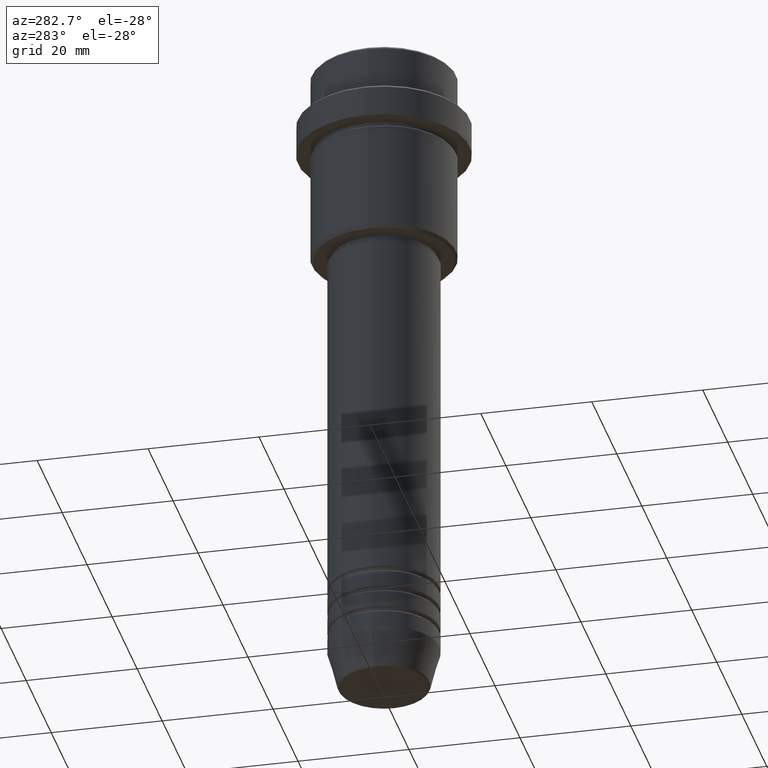
[diagram: clean part render]
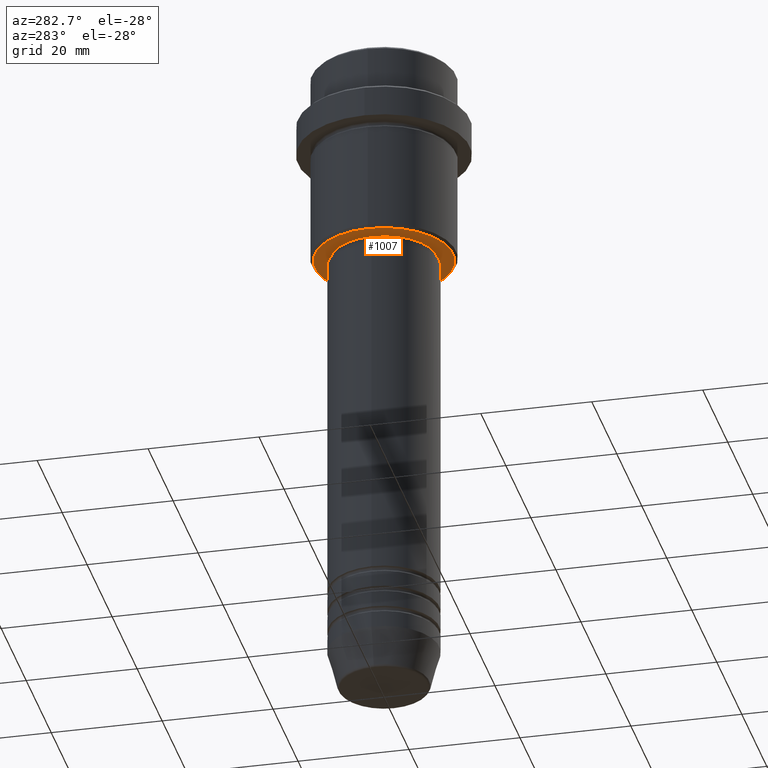
[diagram: same view with one face highlighted and labeled with its STEP entity id]
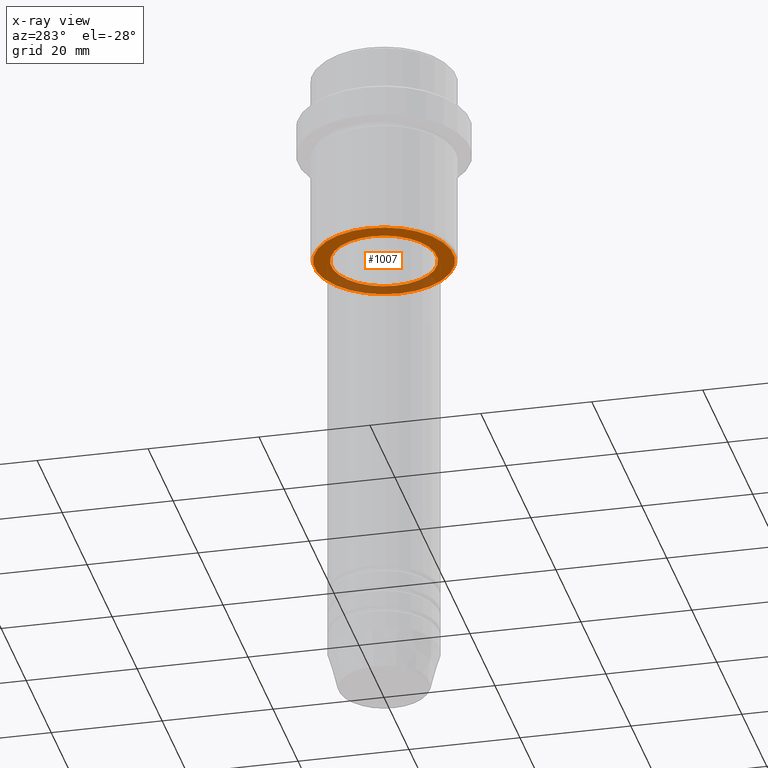
[diagram: x-ray of the same camera — body ghosted, the highlighted face saturated]
A machine part, auxiliary view. The second image highlights one B-rep face of the part: STEP entity #1007.
The next image is the same camera in x-ray: the body ghosted, the highlighted face saturated — about 29% of this face is hidden behind the body in this view.
In plain terms, the highlighted planar face has unit normal (0, 0, -1).
Its self-contained STEP definition (entity closure, byte-faithful):
#22 = CIRCLE ( 'NONE', #1201, 9.499999999999996447 ) ;
#30 = ORIENTED_EDGE ( 'NONE', *, *, #798, .T. ) ;
#31 = VERTEX_POINT ( 'NONE', #636 ) ;
#66 = EDGE_CURVE ( 'NONE', #942, #1308, #253, .T. ) ;
#73 = AXIS2_PLACEMENT_3D ( 'NONE', #1366, #1156, #376 ) ;
#106 = ORIENTED_EDGE ( 'NONE', *, *, #66, .T. ) ;
#140 = EDGE_LOOP ( 'NONE', ( #106, #30 ) ) ;
#147 = CIRCLE ( 'NONE', #750, 12.49999999999998401 ) ;
#195 = DIRECTION ( 'NONE',  ( 0.000000000000000000, 0.000000000000000000, -1.000000000000000000 ) ) ;
#210 = PLANE ( 'NONE',  #747 ) ;
#253 = CIRCLE ( 'NONE', #73, 9.499999999999996447 ) ;
#263 = CARTESIAN_POINT ( 'NONE',  ( 0.000000000000000000, 0.000000000000000000, -36.00000000000000711 ) ) ;
#265 = CARTESIAN_POINT ( 'NONE',  ( -9.499999999999996447, 1.163414459189985091E-15, -36.00000000000000711 ) ) ;
#271 = CIRCLE ( 'NONE', #545, 12.49999999999998401 ) ;
#334 = VERTEX_POINT ( 'NONE', #590 ) ;
#357 = DIRECTION ( 'NONE',  ( 0.000000000000000000, 0.000000000000000000, -1.000000000000000000 ) ) ;
#363 = EDGE_LOOP ( 'NONE', ( #1019, #512 ) ) ;
#376 = DIRECTION ( 'NONE',  ( 1.000000000000000000, 0.000000000000000000, 0.000000000000000000 ) ) ;
#512 = ORIENTED_EDGE ( 'NONE', *, *, #640, .T. ) ;
#545 = AXIS2_PLACEMENT_3D ( 'NONE', #1253, #357, #1040 ) ;
#590 = CARTESIAN_POINT ( 'NONE',  ( 12.49999999999998401, 0.000000000000000000, -36.00000000000000711 ) ) ;
#636 = CARTESIAN_POINT ( 'NONE',  ( -12.49999999999998401, 1.561424668912874125E-15, -36.00000000000000711 ) ) ;
#640 = EDGE_CURVE ( 'NONE', #31, #334, #271, .T. ) ;
#681 = DIRECTION ( 'NONE',  ( 1.000000000000000000, 0.000000000000000000, 0.000000000000000000 ) ) ;
#693 = DIRECTION ( 'NONE',  ( -0.000000000000000000, -0.000000000000000000, 1.000000000000000000 ) ) ;
#713 = DIRECTION ( 'NONE',  ( -1.000000000000000000, 0.000000000000000000, 0.000000000000000000 ) ) ;
#747 = AXIS2_PLACEMENT_3D ( 'NONE', #1312, #195, #760 ) ;
#750 = AXIS2_PLACEMENT_3D ( 'NONE', #921, #804, #713 ) ;
#760 = DIRECTION ( 'NONE',  ( -1.000000000000000000, 0.000000000000000000, -0.000000000000000000 ) ) ;
#798 = EDGE_CURVE ( 'NONE', #1308, #942, #22, .T. ) ;
#804 = DIRECTION ( 'NONE',  ( 0.000000000000000000, 0.000000000000000000, -1.000000000000000000 ) ) ;
#851 = FACE_OUTER_BOUND ( 'NONE', #363, .T. ) ;
#921 = CARTESIAN_POINT ( 'NONE',  ( 0.000000000000000000, 0.000000000000000000, -36.00000000000000711 ) ) ;
#942 = VERTEX_POINT ( 'NONE', #1275 ) ;
#958 = FACE_BOUND ( 'NONE', #140, .T. ) ;
#1007 = ADVANCED_FACE ( 'NONE', ( #851, #958 ), #210, .T. ) ;
#1019 = ORIENTED_EDGE ( 'NONE', *, *, #1331, .T. ) ;
#1040 = DIRECTION ( 'NONE',  ( -1.000000000000000000, 0.000000000000000000, 0.000000000000000000 ) ) ;
#1156 = DIRECTION ( 'NONE',  ( -0.000000000000000000, -0.000000000000000000, 1.000000000000000000 ) ) ;
#1201 = AXIS2_PLACEMENT_3D ( 'NONE', #263, #693, #681 ) ;
#1253 = CARTESIAN_POINT ( 'NONE',  ( 0.000000000000000000, 0.000000000000000000, -36.00000000000000711 ) ) ;
#1275 = CARTESIAN_POINT ( 'NONE',  ( 9.499999999999996447, 0.000000000000000000, -36.00000000000000711 ) ) ;
#1308 = VERTEX_POINT ( 'NONE', #265 ) ;
#1312 = CARTESIAN_POINT ( 'NONE',  ( 0.000000000000000000, 13.00000000000000000, -36.00000000000000711 ) ) ;
#1331 = EDGE_CURVE ( 'NONE', #334, #31, #147, .T. ) ;
#1366 = CARTESIAN_POINT ( 'NONE',  ( 0.000000000000000000, 0.000000000000000000, -36.00000000000000711 ) ) ;